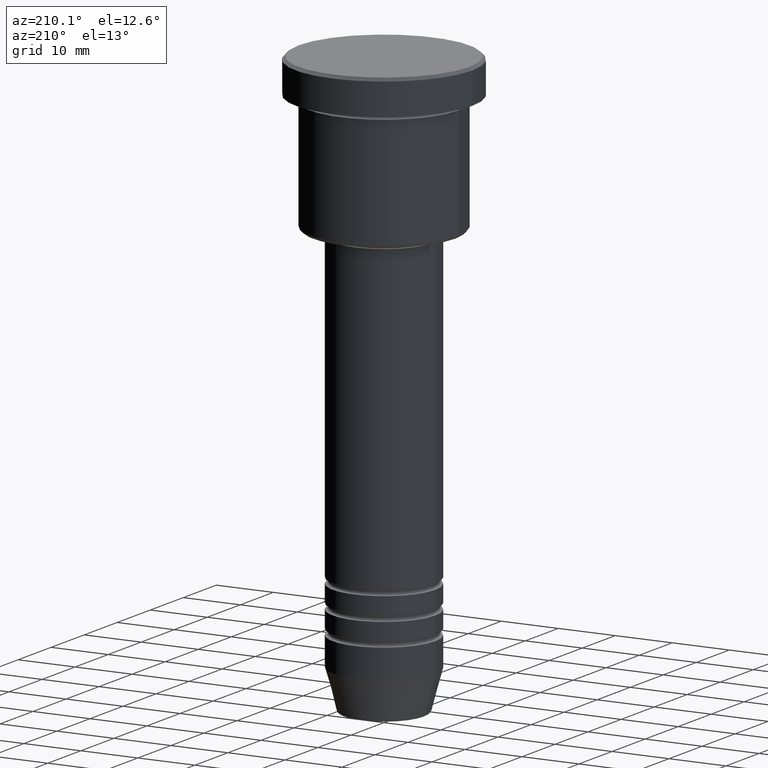
[diagram: clean part render]
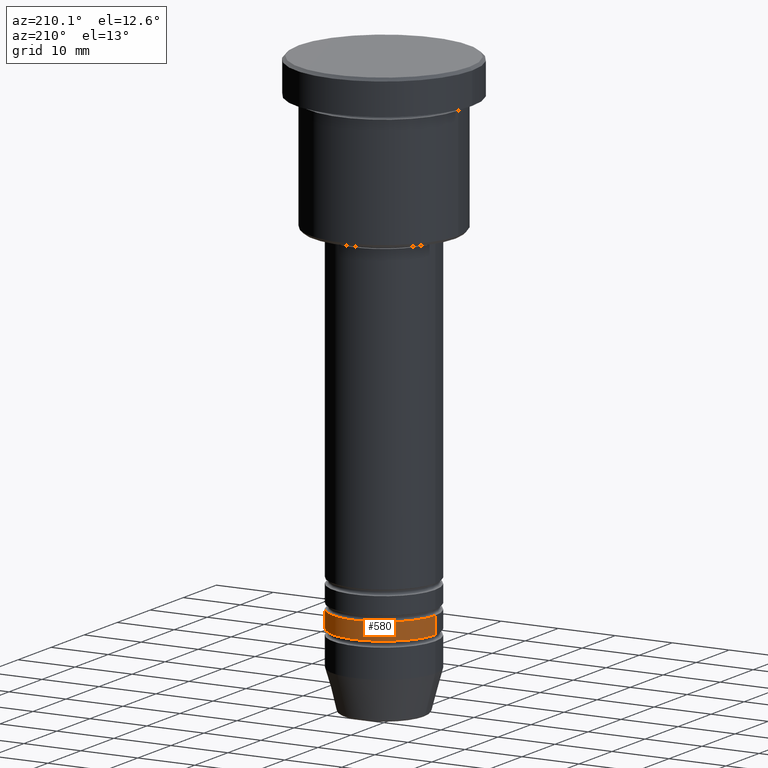
[diagram: same view with one face highlighted and labeled with its STEP entity id]
A machine part, auxiliary view. The second image highlights one B-rep face of the part: STEP entity #580.
In plain terms, the highlighted cylindrical surface (partial cylindrical patch) has radius 9 mm, axis along (-0, -0, 1).
Its self-contained STEP definition (entity closure, byte-faithful):
#7 = VERTEX_POINT ( 'NONE', #1077 ) ;
#10 = DIRECTION ( 'NONE',  ( -0.000000000000000000, -0.000000000000000000, 1.000000000000000000 ) ) ;
#40 = DIRECTION ( 'NONE',  ( 1.000000000000000000, 0.000000000000000000, 0.000000000000000000 ) ) ;
#101 = DIRECTION ( 'NONE',  ( 1.000000000000000000, 0.000000000000000000, 0.000000000000000000 ) ) ;
#138 = DIRECTION ( 'NONE',  ( 1.000000000000000000, 0.000000000000000000, 0.000000000000000000 ) ) ;
#148 = EDGE_CURVE ( 'NONE', #381, #417, #965, .T. ) ;
#201 = DIRECTION ( 'NONE',  ( -0.000000000000000000, -0.000000000000000000, 1.000000000000000000 ) ) ;
#208 = AXIS2_PLACEMENT_3D ( 'NONE', #596, #341, #138 ) ;
#232 = FACE_OUTER_BOUND ( 'NONE', #358, .T. ) ;
#275 = ORIENTED_EDGE ( 'NONE', *, *, #546, .T. ) ;
#341 = DIRECTION ( 'NONE',  ( -0.000000000000000000, -0.000000000000000000, 1.000000000000000000 ) ) ;
#358 = EDGE_LOOP ( 'NONE', ( #1163, #275, #1171, #412 ) ) ;
#381 = VERTEX_POINT ( 'NONE', #867 ) ;
#412 = ORIENTED_EDGE ( 'NONE', *, *, #730, .F. ) ;
#417 = VERTEX_POINT ( 'NONE', #1067 ) ;
#435 = CARTESIAN_POINT ( 'NONE',  ( -9.000000000000001776, 1.102182119232617911E-15, 0.000000000000000000 ) ) ;
#454 = AXIS2_PLACEMENT_3D ( 'NONE', #996, #10, #101 ) ;
#546 = EDGE_CURVE ( 'NONE', #7, #417, #1036, .T. ) ;
#580 = ADVANCED_FACE ( 'NONE', ( #232 ), #946, .T. ) ;
#596 = CARTESIAN_POINT ( 'NONE',  ( 0.000000000000000000, 0.000000000000000000, 0.000000000000000000 ) ) ;
#649 = AXIS2_PLACEMENT_3D ( 'NONE', #964, #868, #40 ) ;
#730 = EDGE_CURVE ( 'NONE', #804, #381, #1013, .T. ) ;
#743 = VECTOR ( 'NONE', #201, 1000.000000000000000 ) ;
#746 = CARTESIAN_POINT ( 'NONE',  ( 9.000000000000001776, 0.000000000000000000, 0.000000000000000000 ) ) ;
#804 = VERTEX_POINT ( 'NONE', #931 ) ;
#820 = VECTOR ( 'NONE', #1137, 1000.000000000000000 ) ;
#867 = CARTESIAN_POINT ( 'NONE',  ( 9.000000000000000000, 0.000000000000000000, -85.99999999999988631 ) ) ;
#868 = DIRECTION ( 'NONE',  ( -0.000000000000000000, -0.000000000000000000, 1.000000000000000000 ) ) ;
#931 = CARTESIAN_POINT ( 'NONE',  ( 9.000000000000001776, 0.000000000000000000, -88.99999999999988631 ) ) ;
#946 = CYLINDRICAL_SURFACE ( 'NONE', #208, 9.000000000000001776 ) ;
#964 = CARTESIAN_POINT ( 'NONE',  ( 0.000000000000000000, 0.000000000000000000, -88.99999999999988631 ) ) ;
#965 = CIRCLE ( 'NONE', #454, 9.000000000000000000 ) ;
#996 = CARTESIAN_POINT ( 'NONE',  ( 0.000000000000000000, 0.000000000000000000, -85.99999999999988631 ) ) ;
#1004 = CIRCLE ( 'NONE', #649, 9.000000000000001776 ) ;
#1013 = LINE ( 'NONE', #746, #743 ) ;
#1019 = EDGE_CURVE ( 'NONE', #804, #7, #1004, .T. ) ;
#1036 = LINE ( 'NONE', #435, #820 ) ;
#1067 = CARTESIAN_POINT ( 'NONE',  ( -9.000000000000000000, 1.102182119232617714E-15, -85.99999999999988631 ) ) ;
#1077 = CARTESIAN_POINT ( 'NONE',  ( -9.000000000000001776, 1.102182119232617911E-15, -88.99999999999988631 ) ) ;
#1137 = DIRECTION ( 'NONE',  ( -0.000000000000000000, -0.000000000000000000, 1.000000000000000000 ) ) ;
#1163 = ORIENTED_EDGE ( 'NONE', *, *, #1019, .T. ) ;
#1171 = ORIENTED_EDGE ( 'NONE', *, *, #148, .F. ) ;